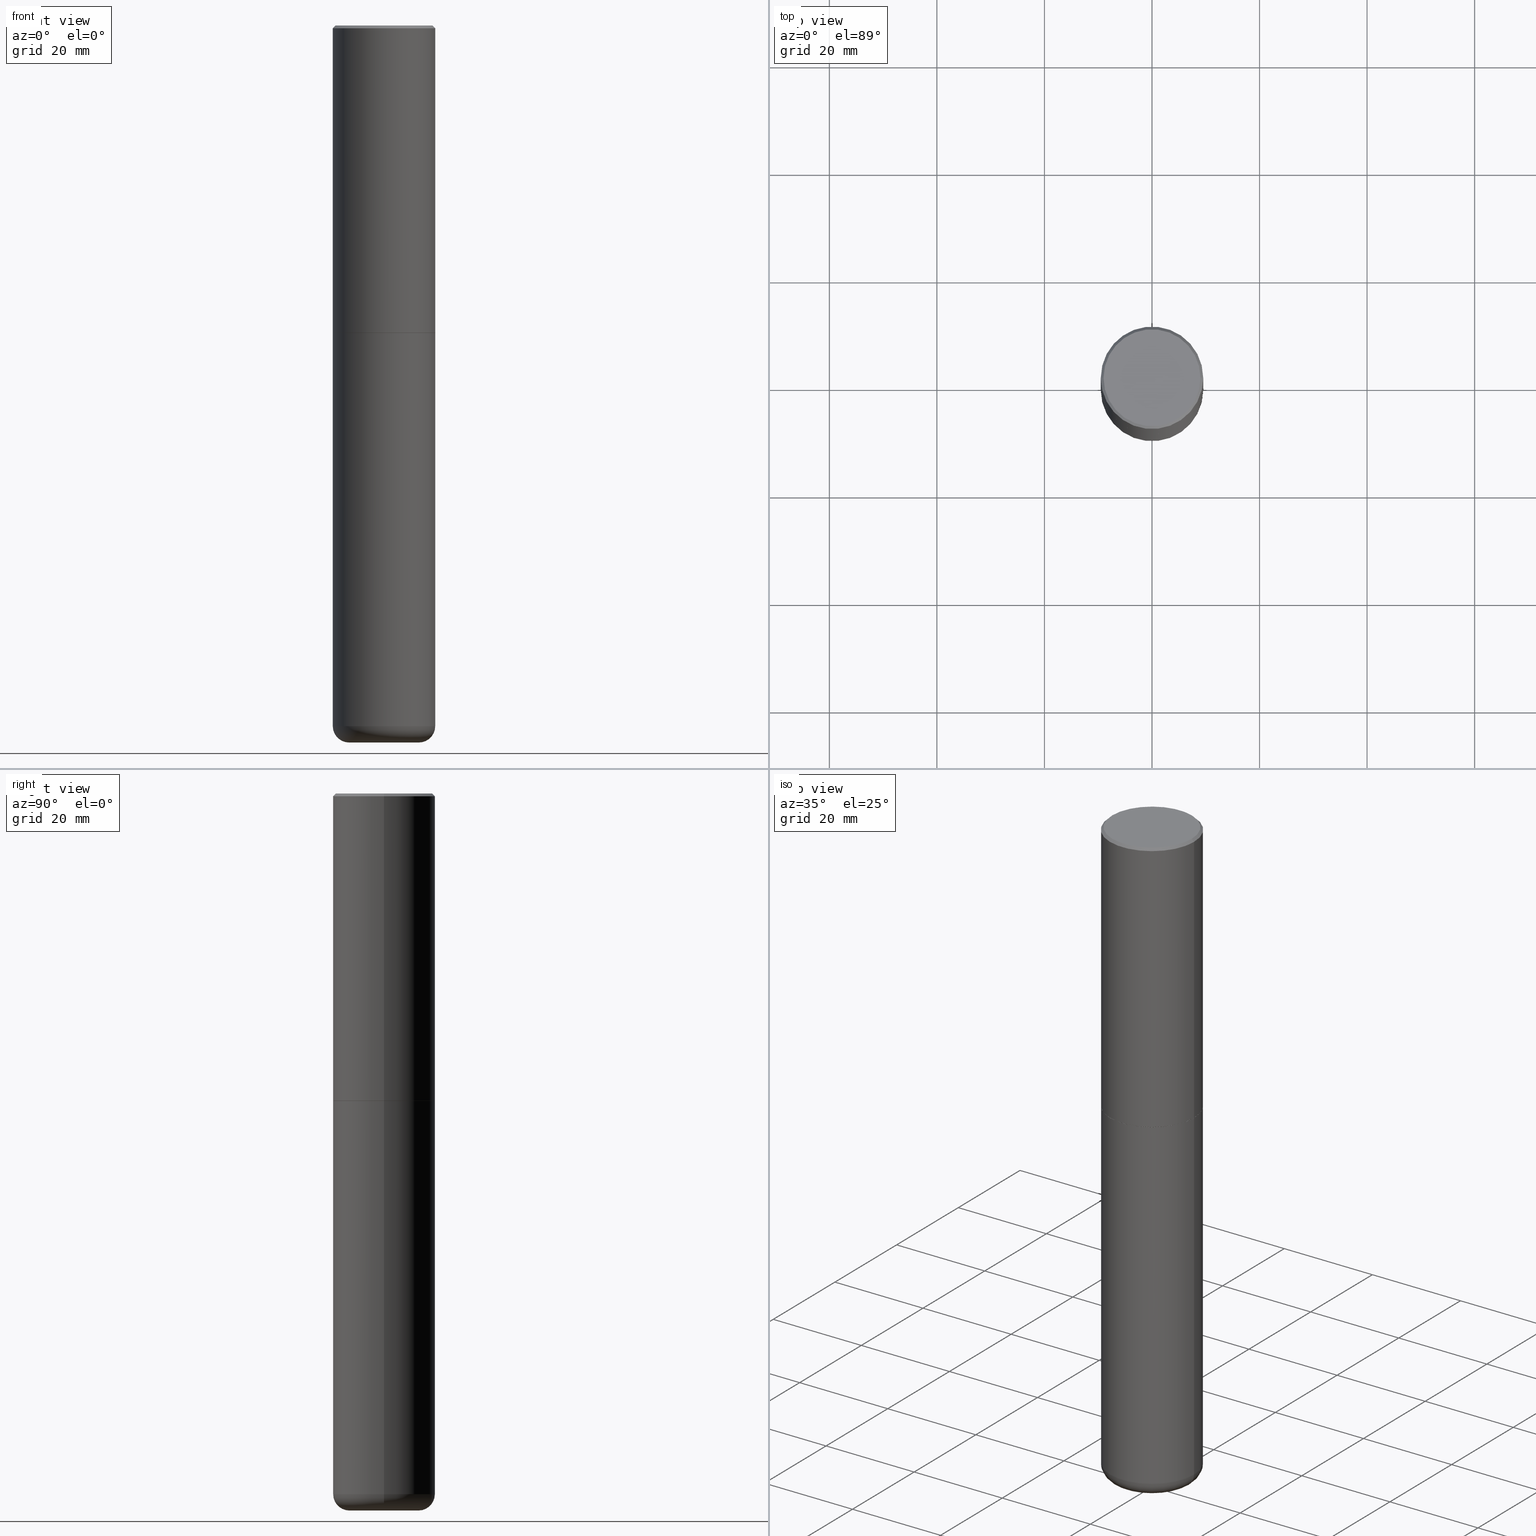
[diagram: canonical four-view strip — front | top / right | iso, engineering-drawing reading convention]
A machine part, canonical four-view strip (front | top / right | iso — engineering-drawing reading convention). The complete STEP part file that produces these views, byte-faithful:
ISO-10303-21;
HEADER;
FILE_DESCRIPTION (( 'STEP AP203' ),
    '1' );
FILE_NAME ('77288.STEP',
    '2024-03-06T16:52:44',
    ( '' ),
    ( '' ),
    'SwSTEP 2.0',
    'SolidWorks 2023',
    '' );
FILE_SCHEMA (( 'CONFIG_CONTROL_DESIGN' ));
ENDSEC;

DATA;
#1 = CARTESIAN_POINT ( 'NONE',  ( -0.3750000000000001110, 2.548781377355487113E-15, -0.02000000000000008715 ) ) ;
#2 = CARTESIAN_POINT ( 'NONE',  ( 5.499859345110371740E-29, -7.852341531058233864E-15, -2.249000000000000110 ) ) ;
#3 = CARTESIAN_POINT ( 'NONE',  ( 0.3739999999999999991, -1.046746105385174245E-14, -2.250000000000000444 ) ) ;
#4 = VECTOR ( 'NONE', #261, 39.37007874015748143 ) ;
#5 = ORGANIZATION ( 'UNSPECIFIED', 'UNSPECIFIED', '' ) ;
#6 = LINE ( 'NONE', #129, #4 ) ;
#7 = VERTEX_POINT ( 'NONE', #110 ) ;
#8 = CARTESIAN_POINT ( 'NONE',  ( 0.000000000000000000, 0.000000000000000000, 0.000000000000000000 ) ) ;
#9 = DIRECTION ( 'NONE',  ( 1.000000000000000000, -6.982962677686264344E-15, 0.000000000000000000 ) ) ;
#10 = PRODUCT_DEFINITION ( 'UNKNOWN', '', #29, #371 ) ;
#11 = PLANE ( 'NONE',  #107 ) ;
#12 = FACE_OUTER_BOUND ( 'NONE', #344, .T. ) ;
#13 = DIRECTION ( 'NONE',  ( 1.000000000000000000, -6.982962677686266711E-15, 4.876176775795935793E-29 ) ) ;
#14 = ORIENTED_EDGE ( 'NONE', *, *, #51, .F. ) ;
#15 = CONICAL_SURFACE ( 'NONE', #62, 0.3750000000000001110, 0.7853981633974477239 ) ;
#16 = DIRECTION ( 'NONE',  ( 1.000000000000000000, -6.982962677686267499E-15, 0.000000000000000000 ) ) ;
#17 = ORIENTED_EDGE ( 'NONE', *, *, #117, .T. ) ;
#18 = PERSON_AND_ORGANIZATION_ROLE ( 'creator' ) ;
#19 = COORDINATED_UNIVERSAL_TIME_OFFSET ( 5, 0, .BEHIND. ) ;
#20 = AXIS2_PLACEMENT_3D ( 'NONE', #104, #359, #30 ) ;
#21 = APPROVAL_DATE_TIME ( #341, #275 ) ;
#22 = EDGE_CURVE ( 'NONE', #188, #69, #112, .T. ) ;
#23 = CIRCLE ( 'NONE', #91, 0.3549999999999999822 ) ;
#24 = ORIENTED_EDGE ( 'NONE', *, *, #342, .T. ) ;
#25 = DATE_TIME_ROLE ( 'classification_date' ) ;
#26 = ORIENTED_EDGE ( 'NONE', *, *, #273, .T. ) ;
#27 = ORIENTED_EDGE ( 'NONE', *, *, #136, .F. ) ;
#28 = AXIS2_PLACEMENT_3D ( 'NONE', #398, #324, #184 ) ;
#29 = PRODUCT_DEFINITION_FORMATION_WITH_SPECIFIED_SOURCE ( 'ANY', '', #120, .NOT_KNOWN. ) ;
#30 = DIRECTION ( 'NONE',  ( 1.000000000000000000, -6.982962677686265922E-15, 4.876176775795935793E-29 ) ) ;
#31 = DATE_AND_TIME ( #285, #170 ) ;
#32 = DIRECTION ( 'NONE',  ( -2.445468806185136597E-29, 3.491481338843145583E-15, 1.000000000000000000 ) ) ;
#33 = VERTEX_POINT ( 'NONE', #72 ) ;
#34 = DIRECTION ( 'NONE',  ( 1.000000000000000000, -6.982962677686265922E-15, 4.876176775795935793E-29 ) ) ;
#35 = DIRECTION ( 'NONE',  ( -2.445468806185136597E-29, 3.491481338843145583E-15, 1.000000000000000000 ) ) ;
#36 = ORIENTED_EDGE ( 'NONE', *, *, #83, .F. ) ;
#37 = VECTOR ( 'NONE', #257, 39.37007874015748143 ) ;
#38 = LOCAL_TIME ( 11, 52, 44.00000000000000000, #289 ) ;
#39 = CC_DESIGN_PERSON_AND_ORGANIZATION_ASSIGNMENT ( #148, #345, ( #29 ) ) ;
#40 = FACE_OUTER_BOUND ( 'NONE', #221, .T. ) ;
#41 = DIRECTION ( 'NONE',  ( -2.445468806185136597E-29, 3.491481338843145583E-15, 1.000000000000000000 ) ) ;
#42 = CARTESIAN_POINT ( 'NONE',  ( 0.2550000000000000044, -1.969195475107533334E-14, -5.129999999999999893 ) ) ;
#43 = DIRECTION ( 'NONE',  ( 2.445468806185136597E-29, -3.491481338843145583E-15, -1.000000000000000000 ) ) ;
#44 = DIRECTION ( 'NONE',  ( -2.445468806185136597E-29, 3.491481338843145583E-15, 1.000000000000000000 ) ) ;
#45 = DIRECTION ( 'NONE',  ( 1.000000000000000000, -6.982962677686264344E-15, 0.000000000000000000 ) ) ;
#46 = FACE_OUTER_BOUND ( 'NONE', #214, .T. ) ;
#47 = AXIS2_PLACEMENT_3D ( 'NONE', #370, #259, #45 ) ;
#48 = CIRCLE ( 'NONE', #374, 0.2550000000000000044 ) ;
#49 = DIRECTION ( 'NONE',  ( 1.000000000000000000, -6.982962677686266711E-15, 4.876176775795935793E-29 ) ) ;
#50 = EDGE_CURVE ( 'NONE', #351, #369, #365, .T. ) ;
#51 = EDGE_CURVE ( 'NONE', #251, #180, #346, .T. ) ;
#52 = EDGE_LOOP ( 'NONE', ( #186, #196, #316, #382 ) ) ;
#53 = AXIS2_PLACEMENT_3D ( 'NONE', #327, #105, #68 ) ;
#54 = TOROIDAL_SURFACE ( 'NONE', #74, 0.2550000000000000044, 0.1199999999999993711 ) ;
#55 = PERSON_AND_ORGANIZATION_ROLE ( 'classification_officer' ) ;
#56 = ORIENTED_EDGE ( 'NONE', *, *, #317, .T. ) ;
#57 = APPLICATION_CONTEXT ( 'configuration controlled 3d designs of mechanical parts and assemblies' ) ;
#58 = COORDINATED_UNIVERSAL_TIME_OFFSET ( 5, 0, .BEHIND. ) ;
#59 = EDGE_CURVE ( 'NONE', #313, #69, #160, .T. ) ;
#60 = ORIENTED_EDGE ( 'NONE', *, *, #243, .T. ) ;
#61 = DIRECTION ( 'NONE',  ( 1.000000000000000000, -6.982962677686263555E-15, 4.883557194083111219E-29 ) ) ;
#62 = AXIS2_PLACEMENT_3D ( 'NONE', #197, #43, #165 ) ;
#63 = EDGE_LOOP ( 'NONE', ( #124, #286, #325, #106 ) ) ;
#64 = APPLICATION_PROTOCOL_DEFINITION ( 'international standard', 'config_control_design', 1994, #57 ) ;
#65 = PLANE ( 'NONE',  #256 ) ;
#66 = ADVANCED_FACE ( 'NONE', ( #296 ), #11, .F. ) ;
#67 = DIRECTION ( 'NONE',  ( -0.7071067811865471286, 2.468850131082252722E-15, -0.7071067811865479058 ) ) ;
#68 = DIRECTION ( 'NONE',  ( 1.000000000000000000, -6.982962677686265922E-15, 4.876231632511988183E-29 ) ) ;
#69 = VERTEX_POINT ( 'NONE', #201 ) ;
#70 = DIRECTION ( 'NONE',  ( 2.445468806185136597E-29, -3.491481338843145583E-15, -1.000000000000000000 ) ) ;
#71 = DIRECTION ( 'NONE',  ( 1.000000000000000000, -6.982962677686265922E-15, 0.000000000000000000 ) ) ;
#72 = CARTESIAN_POINT ( 'NONE',  ( -0.3750000000000002776, -1.296550319817170517E-15, -2.249000000000000110 ) ) ;
#73 = AXIS2_PLACEMENT_3D ( 'NONE', #2, #41, #16 ) ;
#74 = AXIS2_PLACEMENT_3D ( 'NONE', #329, #171, #113 ) ;
#75 = DIRECTION ( 'NONE',  ( 1.000000000000000000, -6.982962677686265922E-15, 4.876231632511988183E-29 ) ) ;
#76 = CARTESIAN_POINT ( 'NONE',  ( 0.3750000000000000555, -1.047444401652942689E-14, -2.250000000000000000 ) ) ;
#77 = EDGE_LOOP ( 'NONE', ( #147, #56, #103, #400 ) ) ;
#78 = CARTESIAN_POINT ( 'NONE',  ( -0.2550000000000000044, -1.609941529207708187E-14, -5.129999999999999893 ) ) ;
#79 = DIRECTION ( 'NONE',  ( 1.000000000000000000, -6.982962677686271444E-15, 0.000000000000000000 ) ) ;
#80 = CARTESIAN_POINT ( 'NONE',  ( 5.502304813916557343E-29, -7.855833012397078448E-15, -2.250000000000000000 ) ) ;
#81 = FACE_OUTER_BOUND ( 'NONE', #361, .T. ) ;
#82 = APPROVAL_PERSON_ORGANIZATION ( #250, #174, #123 ) ;
#83 = EDGE_CURVE ( 'NONE', #89, #7, #290, .T. ) ;
#84 = DIRECTION ( 'NONE',  ( -2.445468806185136877E-29, 3.491481338843145188E-15, 1.000000000000000000 ) ) ;
#85 = AXIS2_PLACEMENT_3D ( 'NONE', #187, #320, #287 ) ;
#86 = DIRECTION ( 'NONE',  ( -2.445468806185136597E-29, 3.491481338843145583E-15, 1.000000000000000000 ) ) ;
#87 = LENGTH_MEASURE_WITH_UNIT ( LENGTH_MEASURE( 0.02539999999999999897 ), #140 );
#88 = SHAPE_DEFINITION_REPRESENTATION ( #144, #378 ) ;
#89 = VERTEX_POINT ( 'NONE', #3 ) ;
#90 = DIRECTION ( 'NONE',  ( 1.000000000000000000, 0.000000000000000000, 0.000000000000000000 ) ) ;
#91 = AXIS2_PLACEMENT_3D ( 'NONE', #233, #367, #75 ) ;
#92 = CC_DESIGN_APPROVAL ( #275, ( #29 ) ) ;
#93 = ADVANCED_FACE ( 'NONE', ( #100 ), #335, .T. ) ;
#94 = ORIENTED_EDGE ( 'NONE', *, *, #22, .T. ) ;
#95 = DIRECTION ( 'NONE',  ( 2.438088387897960049E-29, -3.491481338843145188E-15, -1.000000000000000000 ) ) ;
#96 = ADVANCED_FACE ( 'NONE', ( #81 ), #239, .T. ) ;
#97 = APPROVAL_PERSON_ORGANIZATION ( #172, #275, #211 ) ;
#98 = PLANE ( 'NONE',  #310 ) ;
#99 = DIRECTION ( 'NONE',  ( -1.000000000000000000, 7.105427357600993970E-15, 0.000000000000000000 ) ) ;
#100 = FACE_OUTER_BOUND ( 'NONE', #77, .T. ) ;
#101 = LINE ( 'NONE', #362, #195 ) ;
#102 = PLANE ( 'NONE',  #223 ) ;
#103 = ORIENTED_EDGE ( 'NONE', *, *, #408, .T. ) ;
#104 = CARTESIAN_POINT ( 'NONE',  ( 0.000000000000000000, 0.000000000000000000, 0.000000000000000000 ) ) ;
#105 = DIRECTION ( 'NONE',  ( -2.445468806185136597E-29, 3.491481338843145583E-15, 1.000000000000000000 ) ) ;
#106 = ORIENTED_EDGE ( 'NONE', *, *, #330, .F. ) ;
#107 = AXIS2_PLACEMENT_3D ( 'NONE', #298, #132, #394 ) ;
#108 = CYLINDRICAL_SURFACE ( 'NONE', #116, 0.3750000000000002220 ) ;
#109 = ADVANCED_FACE ( 'NONE', ( #318 ), #235, .T. ) ;
#110 = CARTESIAN_POINT ( 'NONE',  ( -0.3739999999999999991, -5.193104726306080569E-15, -2.250000000000000444 ) ) ;
#111 = CARTESIAN_POINT ( 'NONE',  ( -0.2550000000000000044, -1.588257853095161128E-14, -5.249999999999999112 ) ) ;
#112 = LINE ( 'NONE', #232, #150 ) ;
#113 = DIRECTION ( 'NONE',  ( 1.000000000000000000, -6.982962677686263555E-15, 4.883557194083111219E-29 ) ) ;
#114 = CC_DESIGN_APPROVAL ( #174, ( #387 ) ) ;
#115 = CC_DESIGN_DATE_AND_TIME_ASSIGNMENT ( #31, #25, ( #387 ) ) ;
#116 = AXIS2_PLACEMENT_3D ( 'NONE', #393, #131, #13 ) ;
#117 = EDGE_CURVE ( 'NONE', #180, #293, #413, .T. ) ;
#118 = APPLICATION_PROTOCOL_DEFINITION ( 'international standard', 'config_control_design', 1994, #390 ) ;
#119 = ORIENTED_EDGE ( 'NONE', *, *, #22, .F. ) ;
#120 = PRODUCT ( '77288', '77288', '', ( #348 ) ) ;
#121 = ORIENTED_EDGE ( 'NONE', *, *, #303, .T. ) ;
#122 = LINE ( 'NONE', #1, #409 ) ;
#123 = APPROVAL_ROLE ( '' ) ;
#124 = ORIENTED_EDGE ( 'NONE', *, *, #83, .T. ) ;
#125 = LINE ( 'NONE', #352, #37 ) ;
#126 = CARTESIAN_POINT ( 'NONE',  ( -0.3750000000000001110, 2.548781377355487113E-15, -0.02000000000000008715 ) ) ;
#127 = CIRCLE ( 'NONE', #373, 0.3750000000000002776 ) ;
#128 = EDGE_LOOP ( 'NONE', ( #414, #24, #247, #14 ) ) ;
#129 = CARTESIAN_POINT ( 'NONE',  ( -0.3750000000000000555, 2.664535259100376091E-15, -1.844600658845589598E-29 ) ) ;
#130 = ORIENTED_EDGE ( 'NONE', *, *, #408, .F. ) ;
#131 = DIRECTION ( 'NONE',  ( -2.445468806185136597E-29, 3.491481338843145583E-15, 1.000000000000000000 ) ) ;
#132 = DIRECTION ( 'NONE',  ( -2.438088387897960049E-29, 3.491481338843145188E-15, 1.000000000000000000 ) ) ;
#133 = DIRECTION ( 'NONE',  ( -1.000000000000000000, 6.982962677686265922E-15, -4.876176775795935793E-29 ) ) ;
#134 = CARTESIAN_POINT ( 'NONE',  ( 4.890937612370294178E-31, -6.982962677686321191E-17, -0.02000000000000008715 ) ) ;
#135 = ORIENTED_EDGE ( 'NONE', *, *, #342, .F. ) ;
#136 = EDGE_CURVE ( 'NONE', #7, #89, #379, .T. ) ;
#137 = DIRECTION ( 'NONE',  ( 1.000000000000000000, -6.982962677686260400E-15, 0.000000000000000000 ) ) ;
#138 = ORIENTED_EDGE ( 'NONE', *, *, #412, .F. ) ;
#139 = EDGE_CURVE ( 'NONE', #151, #313, #122, .T. ) ;
#140 =( LENGTH_UNIT ( ) NAMED_UNIT ( * ) SI_UNIT ( $, .METRE. ) );
#141 = AXIS2_PLACEMENT_3D ( 'NONE', #164, #288, #405 ) ;
#142 = AXIS2_PLACEMENT_3D ( 'NONE', #152, #357, #90 ) ;
#143 = EDGE_LOOP ( 'NONE', ( #36, #27 ) ) ;
#144 = PRODUCT_DEFINITION_SHAPE ( 'NONE', 'NONE',  #10 ) ;
#145 = COORDINATED_UNIVERSAL_TIME_OFFSET ( 5, 0, .BEHIND. ) ;
#146 = ADVANCED_FACE ( 'NONE', ( #265 ), #395, .T. ) ;
#147 = ORIENTED_EDGE ( 'NONE', *, *, #383, .F. ) ;
#148 = PERSON_AND_ORGANIZATION ( #192, #5 ) ;
#149 = ORIENTED_EDGE ( 'NONE', *, *, #260, .T. ) ;
#150 = VECTOR ( 'NONE', #364, 39.37007874015748143 ) ;
#151 = VERTEX_POINT ( 'NONE', #255 ) ;
#152 = CARTESIAN_POINT ( 'NONE',  ( 0.000000000000000000, 0.000000000000000000, 0.000000000000000000 ) ) ;
#153 = CARTESIAN_POINT ( 'NONE',  ( 5.502304813916558464E-29, -7.855833012397078448E-15, -2.250000000000000444 ) ) ;
#154 = SECURITY_CLASSIFICATION_LEVEL ( 'unclassified' ) ;
#155 = DIRECTION ( 'NONE',  ( 1.000000000000000000, -6.982962677686261189E-15, 0.000000000000000000 ) ) ;
#156 = DIRECTION ( 'NONE',  ( 2.438088387897960049E-29, -3.491481338843145188E-15, -1.000000000000000000 ) ) ;
#157 = ORIENTED_EDGE ( 'NONE', *, *, #336, .F. ) ;
#158 = CARTESIAN_POINT ( 'NONE',  ( 0.3749999999999996669, -2.052991027239768345E-14, -5.129999999999999893 ) ) ;
#159 = CARTESIAN_POINT ( 'NONE',  ( 5.502304813916557343E-29, -7.855833012397078448E-15, -2.250000000000000000 ) ) ;
#160 = CIRCLE ( 'NONE', #141, 0.3750000000000001110 ) ;
#161 = ORIENTED_EDGE ( 'NONE', *, *, #243, .F. ) ;
#162 = CONICAL_SURFACE ( 'NONE', #210, 0.3739999999999999991, 0.7853981633974141952 ) ;
#163 = CARTESIAN_POINT ( 'NONE',  ( 0.2550000000000000044, -2.011093251173650682E-14, -5.249999999999999112 ) ) ;
#164 = CARTESIAN_POINT ( 'NONE',  ( 4.890937612370294178E-31, -6.982962677686321191E-17, -0.02000000000000008715 ) ) ;
#165 = DIRECTION ( 'NONE',  ( -1.000000000000000000, 6.982962677686265922E-15, 0.000000000000000000 ) ) ;
#166 = DIRECTION ( 'NONE',  ( -6.982962677686266711E-15, -1.000000000000000000, 3.491481338843145583E-15 ) ) ;
#167 = DIRECTION ( 'NONE',  ( -1.000000000000000000, 6.982962677686265922E-15, -4.876176775795935793E-29 ) ) ;
#168 = DIRECTION ( 'NONE',  ( -2.445468806185136597E-29, 3.491481338843145583E-15, 1.000000000000000000 ) ) ;
#169 = CIRCLE ( 'NONE', #411, 0.3750000000000000555 ) ;
#170 = LOCAL_TIME ( 11, 52, 44.00000000000000000, #179 ) ;
#171 = DIRECTION ( 'NONE',  ( -2.445468806185136597E-29, 3.491481338843145583E-15, 1.000000000000000000 ) ) ;
#172 = PERSON_AND_ORGANIZATION ( #192, #5 ) ;
#173 = AXIS2_PLACEMENT_3D ( 'NONE', #153, #294, #224 ) ;
#174 = APPROVAL ( #417, 'UNSPECIFIED' ) ;
#175 = PERSON_AND_ORGANIZATION ( #192, #5 ) ;
#176 = AXIS2_PLACEMENT_3D ( 'NONE', #8, #284, #34 ) ;
#177 = AXIS2_PLACEMENT_3D ( 'NONE', #78, #234, #99 ) ;
#178 = APPROVAL_PERSON_ORGANIZATION ( #249, #302, #350 ) ;
#179 = COORDINATED_UNIVERSAL_TIME_OFFSET ( 5, 0, .BEHIND. ) ;
#180 = VERTEX_POINT ( 'NONE', #158 ) ;
#181 = CALENDAR_DATE ( 2024, 6, 3 ) ;
#182 = ORIENTED_EDGE ( 'NONE', *, *, #59, .T. ) ;
#183 = TOROIDAL_SURFACE ( 'NONE', #204, 0.2550000000000000044, 0.1199999999999993711 ) ;
#184 = DIRECTION ( 'NONE',  ( 1.000000000000000000, -6.982962677686261189E-15, 0.000000000000000000 ) ) ;
#185 = CIRCLE ( 'NONE', #225, 0.3750000000000001110 ) ;
#186 = ORIENTED_EDGE ( 'NONE', *, *, #237, .F. ) ;
#187 = CARTESIAN_POINT ( 'NONE',  ( 5.502304813916558464E-29, -7.855833012397078448E-15, -2.250000000000000444 ) ) ;
#188 = VERTEX_POINT ( 'NONE', #416 ) ;
#189 = DIRECTION ( 'NONE',  ( 2.438088387897960049E-29, -3.491481338843145188E-15, -1.000000000000000000 ) ) ;
#190 = DIRECTION ( 'NONE',  ( -2.445468806185136597E-29, 3.491481338843145583E-15, 1.000000000000000000 ) ) ;
#191 = DIRECTION ( 'NONE',  ( -0.7071067811865232589, 7.493145998870265808E-15, 0.7071067811865715536 ) ) ;
#192 = PERSON ( 'UNSPECIFIED', 'UNSPECIFIED', 'UNSPECIFIED', ('UNSPECIFIED'), ('UNSPECIFIED'), ('UNSPECIFIED') ) ;
#193 = FACE_OUTER_BOUND ( 'NONE', #128, .T. ) ;
#194 = ADVANCED_FACE ( 'NONE', ( #356 ), #65, .F. ) ;
#195 = VECTOR ( 'NONE', #191, 39.37007874015748854 ) ;
#196 = ORIENTED_EDGE ( 'NONE', *, *, #136, .T. ) ;
#197 = CARTESIAN_POINT ( 'NONE',  ( 4.890937612370294178E-31, -6.982962677686321191E-17, -0.02000000000000008715 ) ) ;
#198 = FACE_OUTER_BOUND ( 'NONE', #63, .T. ) ;
#199 = ORIENTED_EDGE ( 'NONE', *, *, #139, .T. ) ;
#200 = LINE ( 'NONE', #208, #217 ) ;
#201 = CARTESIAN_POINT ( 'NONE',  ( 0.3750000000000001110, -2.642516375941188423E-15, -0.02000000000000008715 ) ) ;
#202 = CARTESIAN_POINT ( 'NONE',  ( 0.3750000000000002776, -1.047095253519058704E-14, -2.249000000000000110 ) ) ;
#203 = DIRECTION ( 'NONE',  ( -2.445468806185136597E-29, 3.491481338843145583E-15, 1.000000000000000000 ) ) ;
#204 = AXIS2_PLACEMENT_3D ( 'NONE', #326, #297, #61 ) ;
#205 = ADVANCED_FACE ( 'NONE', ( #403 ), #215, .T. ) ;
#206 = MANIFOLD_SOLID_BREP ( 'Body-Move/Copy2[1]', #309 ) ;
#207 = CALENDAR_DATE ( 2024, 6, 3 ) ;
#208 = CARTESIAN_POINT ( 'NONE',  ( 0.3750000000000002220, -2.618611004132351594E-15, 1.828566290923477043E-29 ) ) ;
#209 = EDGE_CURVE ( 'NONE', #180, #351, #125, .T. ) ;
#210 = AXIS2_PLACEMENT_3D ( 'NONE', #363, #44, #258 ) ;
#211 = APPROVAL_ROLE ( '' ) ;
#212 = EDGE_LOOP ( 'NONE', ( #228, #149 ) ) ;
#213 = ADVANCED_FACE ( 'NONE', ( #392 ), #98, .T. ) ;
#214 = EDGE_LOOP ( 'NONE', ( #26, #381, #281, #130 ) ) ;
#215 = CONICAL_SURFACE ( 'NONE', #305, 0.3750000000000001110, 0.7853981633974477239 ) ;
#216 = DIMENSIONAL_EXPONENTS ( 1.000000000000000000, 0.000000000000000000, 0.000000000000000000, 0.000000000000000000, 0.000000000000000000, 0.000000000000000000, 0.000000000000000000 ) ;
#217 = VECTOR ( 'NONE', #84, 39.37007874015748143 ) ;
#218 = PERSON_AND_ORGANIZATION ( #192, #5 ) ;
#219 = ORIENTED_EDGE ( 'NONE', *, *, #139, .F. ) ;
#220 = APPROVAL_STATUS ( 'not_yet_approved' ) ;
#221 = EDGE_LOOP ( 'NONE', ( #135, #121, #246, #161 ) ) ;
#222 = CARTESIAN_POINT ( 'NONE',  ( 4.890937612370294178E-31, -6.982962677686321191E-17, -0.02000000000000008715 ) ) ;
#223 = AXIS2_PLACEMENT_3D ( 'NONE', #80, #156, #167 ) ;
#224 = DIRECTION ( 'NONE',  ( 1.000000000000000000, -6.982962677686265133E-15, 0.000000000000000000 ) ) ;
#225 = AXIS2_PLACEMENT_3D ( 'NONE', #134, #262, #71 ) ;
#226 = CARTESIAN_POINT ( 'NONE',  ( 2.854868159318815822E-28, 4.167294683602726042E-15, -5.249999999999999112 ) ) ;
#227 = CARTESIAN_POINT ( 'NONE',  ( 1.283871123247196489E-28, -1.833027702892651007E-14, -5.249999999999999112 ) ) ;
#228 = ORIENTED_EDGE ( 'NONE', *, *, #336, .T. ) ;
#229 = EDGE_CURVE ( 'NONE', #293, #369, #6, .T. ) ;
#230 = DIRECTION ( 'NONE',  ( -1.000000000000000000, 6.982962677686265922E-15, 0.000000000000000000 ) ) ;
#231 = DIRECTION ( 'NONE',  ( 0.7071067811865232589, -2.468850131082003836E-15, 0.7071067811865715536 ) ) ;
#232 = CARTESIAN_POINT ( 'NONE',  ( 0.3750000000000001110, -2.642516375941188423E-15, -0.02000000000000008715 ) ) ;
#233 = CARTESIAN_POINT ( 'NONE',  ( -1.565777121502829671E-45, 2.235514755570671047E-31, 6.402768735150616610E-17 ) ) ;
#234 = DIRECTION ( 'NONE',  ( 7.105427357601001859E-15, 1.000000000000000000, -3.491481338843145583E-15 ) ) ;
#235 = CONICAL_SURFACE ( 'NONE', #85, 0.3739999999999999991, 0.7853981633974141952 ) ;
#236 = ORIENTED_EDGE ( 'NONE', *, *, #209, .F. ) ;
#237 = EDGE_CURVE ( 'NONE', #7, #33, #101, .T. ) ;
#238 = ORIENTED_EDGE ( 'NONE', *, *, #229, .F. ) ;
#239 = CYLINDRICAL_SURFACE ( 'NONE', #20, 0.3750000000000000555 ) ;
#240 = DIRECTION ( 'NONE',  ( 1.000000000000000000, -6.982962677686260400E-15, 0.000000000000000000 ) ) ;
#241 = VECTOR ( 'NONE', #231, 39.37007874015748854 ) ;
#242 = LOCAL_TIME ( 11, 52, 44.00000000000000000, #145 ) ;
#243 = EDGE_CURVE ( 'NONE', #293, #180, #271, .T. ) ;
#244 = CC_DESIGN_PERSON_AND_ORGANIZATION_ASSIGNMENT ( #353, #55, ( #387 ) ) ;
#245 = ADVANCED_FACE ( 'NONE', ( #40 ), #183, .T. ) ;
#246 = ORIENTED_EDGE ( 'NONE', *, *, #51, .T. ) ;
#247 = ORIENTED_EDGE ( 'NONE', *, *, #117, .F. ) ;
#248 = CIRCLE ( 'NONE', #53, 0.3549999999999999822 ) ;
#249 = PERSON_AND_ORGANIZATION ( #192, #5 ) ;
#250 = PERSON_AND_ORGANIZATION ( #192, #5 ) ;
#251 = VERTEX_POINT ( 'NONE', #163 ) ;
#252 = PERSON_AND_ORGANIZATION ( #192, #5 ) ;
#253 = ORIENTED_EDGE ( 'NONE', *, *, #307, .T. ) ;
#254 = PRODUCT_RELATED_PRODUCT_CATEGORY ( 'detail', '', ( #120 ) ) ;
#255 = CARTESIAN_POINT ( 'NONE',  ( -0.3549999999999999822, 2.513866563967055464E-15, 6.402768735148871255E-17 ) ) ;
#256 = AXIS2_PLACEMENT_3D ( 'NONE', #391, #95, #133 ) ;
#257 = DIRECTION ( 'NONE',  ( -2.445468806185136877E-29, 3.491481338843145188E-15, 1.000000000000000000 ) ) ;
#258 = DIRECTION ( 'NONE',  ( 1.000000000000000000, -6.982962677686265133E-15, 0.000000000000000000 ) ) ;
#259 = DIRECTION ( 'NONE',  ( -2.445468806185136597E-29, 3.491481338843145583E-15, 1.000000000000000000 ) ) ;
#260 = EDGE_CURVE ( 'NONE', #188, #151, #23, .T. ) ;
#261 = DIRECTION ( 'NONE',  ( -2.445468806185136877E-29, 3.491481338843145188E-15, 1.000000000000000000 ) ) ;
#262 = DIRECTION ( 'NONE',  ( -2.445468806185136597E-29, 3.491481338843145583E-15, 1.000000000000000000 ) ) ;
#263 = ADVANCED_FACE ( 'NONE', ( #315 ), #15, .T. ) ;
#264 = ORIENTED_EDGE ( 'NONE', *, *, #307, .F. ) ;
#265 = FACE_OUTER_BOUND ( 'NONE', #343, .T. ) ;
#266 = CARTESIAN_POINT ( 'NONE',  ( 1.254525497572975083E-28, -1.791129926826533659E-14, -5.129999999999999893 ) ) ;
#267 = ORIENTED_EDGE ( 'NONE', *, *, #389, .T. ) ;
#268 = CARTESIAN_POINT ( 'NONE',  ( 5.499859345110371740E-29, -7.852341531058233864E-15, -2.249000000000000110 ) ) ;
#269 = ADVANCED_FACE ( 'NONE', ( #12 ), #102, .F. ) ;
#270 = ORIENTED_EDGE ( 'NONE', *, *, #50, .F. ) ;
#271 = CIRCLE ( 'NONE', #28, 0.3750000000000000555 ) ;
#272 = LOCAL_TIME ( 11, 52, 44.00000000000000000, #19 ) ;
#273 = EDGE_CURVE ( 'NONE', #328, #33, #301, .T. ) ;
#274 = ADVANCED_FACE ( 'NONE', ( #46 ), #108, .T. ) ;
#275 = APPROVAL ( #277, 'UNSPECIFIED' ) ;
#276 =( CONVERSION_BASED_UNIT ( 'INCH', #87 ) LENGTH_UNIT ( ) NAMED_UNIT ( #216 ) );
#277 = APPROVAL_STATUS ( 'not_yet_approved' ) ;
#278 = AXIS2_PLACEMENT_3D ( 'NONE', #372, #203, #49 ) ;
#279 = DATE_AND_TIME ( #380, #242 ) ;
#280 = APPROVAL_DATE_TIME ( #279, #174 ) ;
#281 = ORIENTED_EDGE ( 'NONE', *, *, #389, .F. ) ;
#282 = CC_DESIGN_APPROVAL ( #302, ( #10 ) ) ;
#283 = DATE_AND_TIME ( #181, #410 ) ;
#284 = DIRECTION ( 'NONE',  ( -2.445468806185136597E-29, 3.491481338843145583E-15, 1.000000000000000000 ) ) ;
#285 = CALENDAR_DATE ( 2024, 6, 3 ) ;
#286 = ORIENTED_EDGE ( 'NONE', *, *, #237, .T. ) ;
#287 = DIRECTION ( 'NONE',  ( 1.000000000000000000, -6.982962677686265133E-15, 0.000000000000000000 ) ) ;
#288 = DIRECTION ( 'NONE',  ( -2.445468806185136597E-29, 3.491481338843145583E-15, 1.000000000000000000 ) ) ;
#289 = COORDINATED_UNIVERSAL_TIME_OFFSET ( 5, 0, .BEHIND. ) ;
#290 = CIRCLE ( 'NONE', #314, 0.3739999999999999991 ) ;
#291 = DIRECTION ( 'NONE',  ( -1.000000000000000000, 6.982962677686265922E-15, -4.876176775795935793E-29 ) ) ;
#292 = CARTESIAN_POINT ( 'NONE',  ( -0.3750000000000000555, -1.021903088123083182E-14, -2.250000000000000000 ) ) ;
#293 = VERTEX_POINT ( 'NONE', #300 ) ;
#294 = DIRECTION ( 'NONE',  ( -2.445468806185136597E-29, 3.491481338843145583E-15, 1.000000000000000000 ) ) ;
#295 = DIRECTION ( 'NONE',  ( 1.000000000000000000, -6.982962677686267499E-15, 0.000000000000000000 ) ) ;
#296 = FACE_OUTER_BOUND ( 'NONE', #143, .T. ) ;
#297 = DIRECTION ( 'NONE',  ( -2.445468806185136597E-29, 3.491481338843145583E-15, 1.000000000000000000 ) ) ;
#298 = CARTESIAN_POINT ( 'NONE',  ( 5.502304813916558464E-29, -7.855833012397078448E-15, -2.250000000000000444 ) ) ;
#299 = CLOSED_SHELL ( 'NONE', ( #368, #274, #263, #205, #93, #109, #66, #194 ) ) ;
#300 = CARTESIAN_POINT ( 'NONE',  ( -0.3749999999999996669, -1.524676400916496405E-14, -5.129999999999999893 ) ) ;
#301 = CIRCLE ( 'NONE', #73, 0.3750000000000002776 ) ;
#302 = APPROVAL ( #220, 'UNSPECIFIED' ) ;
#303 = EDGE_CURVE ( 'NONE', #354, #251, #355, .T. ) ;
#304 = CC_DESIGN_PERSON_AND_ORGANIZATION_ASSIGNMENT ( #175, #308, ( #29 ) ) ;
#305 = AXIS2_PLACEMENT_3D ( 'NONE', #222, #70, #230 ) ;
#306 = CALENDAR_DATE ( 2024, 6, 3 ) ;
#307 = EDGE_CURVE ( 'NONE', #369, #351, #169, .T. ) ;
#308 = PERSON_AND_ORGANIZATION_ROLE ( 'creator' ) ;
#309 = CLOSED_SHELL ( 'NONE', ( #96, #397, #269, #146, #245, #213 ) ) ;
#310 = AXIS2_PLACEMENT_3D ( 'NONE', #226, #189, #291 ) ;
#311 = ORIENTED_EDGE ( 'NONE', *, *, #303, .F. ) ;
#312 = PERSON_AND_ORGANIZATION_ROLE ( 'design_owner' ) ;
#313 = VERTEX_POINT ( 'NONE', #126 ) ;
#314 = AXIS2_PLACEMENT_3D ( 'NONE', #332, #168, #358 ) ;
#315 = FACE_OUTER_BOUND ( 'NONE', #388, .T. ) ;
#316 = ORIENTED_EDGE ( 'NONE', *, *, #330, .T. ) ;
#317 = EDGE_CURVE ( 'NONE', #33, #328, #127, .T. ) ;
#318 = FACE_OUTER_BOUND ( 'NONE', #52, .T. ) ;
#319 = ORIENTED_EDGE ( 'NONE', *, *, #229, .T. ) ;
#320 = DIRECTION ( 'NONE',  ( -2.445468806185136597E-29, 3.491481338843145583E-15, 1.000000000000000000 ) ) ;
#321 = CARTESIAN_POINT ( 'NONE',  ( -0.3750000000000002220, 2.664535259100377275E-15, -1.844600658845590719E-29 ) ) ;
#322 = AXIS2_PLACEMENT_3D ( 'NONE', #227, #35, #137 ) ;
#323 =( GEOMETRIC_REPRESENTATION_CONTEXT ( 3 ) GLOBAL_UNCERTAINTY_ASSIGNED_CONTEXT ( ( #377 ) ) GLOBAL_UNIT_ASSIGNED_CONTEXT ( ( #276, #340, #333 ) ) REPRESENTATION_CONTEXT ( 'NONE', 'WORKASPACE' ) );
#324 = DIRECTION ( 'NONE',  ( -2.445468806185136597E-29, 3.491481338843145583E-15, 1.000000000000000000 ) ) ;
#325 = ORIENTED_EDGE ( 'NONE', *, *, #273, .F. ) ;
#326 = CARTESIAN_POINT ( 'NONE',  ( 1.254525497572975083E-28, -1.791129926826533659E-14, -5.129999999999999893 ) ) ;
#327 = CARTESIAN_POINT ( 'NONE',  ( -1.565777121502829671E-45, 2.235514755570671047E-31, 6.402768735150616610E-17 ) ) ;
#328 = VERTEX_POINT ( 'NONE', #202 ) ;
#329 = CARTESIAN_POINT ( 'NONE',  ( 1.254525497572975083E-28, -1.791129926826533659E-14, -5.129999999999999893 ) ) ;
#330 = EDGE_CURVE ( 'NONE', #89, #328, #399, .T. ) ;
#331 = MANIFOLD_SOLID_BREP ( 'Body-Move/Copy2[2]', #299 ) ;
#332 = CARTESIAN_POINT ( 'NONE',  ( 5.502304813916558464E-29, -7.855833012397078448E-15, -2.250000000000000444 ) ) ;
#333 =( NAMED_UNIT ( * ) SI_UNIT ( $, .STERADIAN. ) SOLID_ANGLE_UNIT ( ) );
#334 = AXIS2_PLACEMENT_3D ( 'NONE', #266, #32, #155 ) ;
#335 = CYLINDRICAL_SURFACE ( 'NONE', #278, 0.3750000000000002220 ) ;
#336 = EDGE_CURVE ( 'NONE', #151, #188, #248, .T. ) ;
#337 = CARTESIAN_POINT ( 'NONE',  ( 1.283871123247196489E-28, -1.833027702892651007E-14, -5.249999999999999112 ) ) ;
#338 = DATE_TIME_ROLE ( 'creation_date' ) ;
#339 = EDGE_LOOP ( 'NONE', ( #119, #157, #199, #182 ) ) ;
#340 =( NAMED_UNIT ( * ) PLANE_ANGLE_UNIT ( ) SI_UNIT ( $, .RADIAN. ) );
#341 = DATE_AND_TIME ( #306, #272 ) ;
#342 = EDGE_CURVE ( 'NONE', #354, #293, #384, .T. ) ;
#343 = EDGE_LOOP ( 'NONE', ( #238, #60, #407, #264 ) ) ;
#344 = EDGE_LOOP ( 'NONE', ( #386, #253 ) ) ;
#345 = PERSON_AND_ORGANIZATION_ROLE ( 'design_supplier' ) ;
#346 = CIRCLE ( 'NONE', #402, 0.1199999999999993988 ) ;
#347 = EDGE_LOOP ( 'NONE', ( #138, #311 ) ) ;
#348 = MECHANICAL_CONTEXT ( 'NONE', #57, 'mechanical' ) ;
#349 = CC_DESIGN_PERSON_AND_ORGANIZATION_ASSIGNMENT ( #252, #18, ( #10 ) ) ;
#350 = APPROVAL_ROLE ( '' ) ;
#351 = VERTEX_POINT ( 'NONE', #76 ) ;
#352 = CARTESIAN_POINT ( 'NONE',  ( 0.3750000000000000555, -2.618611004132350016E-15, 1.828566290923476203E-29 ) ) ;
#353 = PERSON_AND_ORGANIZATION ( #192, #5 ) ;
#354 = VERTEX_POINT ( 'NONE', #111 ) ;
#355 = CIRCLE ( 'NONE', #322, 0.2550000000000000044 ) ;
#356 = FACE_OUTER_BOUND ( 'NONE', #212, .T. ) ;
#357 = DIRECTION ( 'NONE',  ( 0.000000000000000000, 0.000000000000000000, 1.000000000000000000 ) ) ;
#358 = DIRECTION ( 'NONE',  ( 1.000000000000000000, -6.982962677686265133E-15, 0.000000000000000000 ) ) ;
#359 = DIRECTION ( 'NONE',  ( -2.445468806185136597E-29, 3.491481338843145583E-15, 1.000000000000000000 ) ) ;
#360 = LINE ( 'NONE', #321, #375 ) ;
#361 = EDGE_LOOP ( 'NONE', ( #17, #319, #270, #236 ) ) ;
#362 = CARTESIAN_POINT ( 'NONE',  ( -0.3739999999999999991, -5.198403180654303760E-15, -2.250000000000000444 ) ) ;
#363 = CARTESIAN_POINT ( 'NONE',  ( 5.502304813916558464E-29, -7.855833012397078448E-15, -2.250000000000000444 ) ) ;
#364 = DIRECTION ( 'NONE',  ( 0.7071067811865471286, -7.319954787623254468E-15, -0.7071067811865479058 ) ) ;
#365 = CIRCLE ( 'NONE', #47, 0.3750000000000000555 ) ;
#366 = CC_DESIGN_SECURITY_CLASSIFICATION ( #387, ( #29 ) ) ;
#367 = DIRECTION ( 'NONE',  ( -2.445468806185136597E-29, 3.491481338843145583E-15, 1.000000000000000000 ) ) ;
#368 = ADVANCED_FACE ( 'NONE', ( #198 ), #162, .T. ) ;
#369 = VERTEX_POINT ( 'NONE', #292 ) ;
#370 = CARTESIAN_POINT ( 'NONE',  ( 5.502304813916557343E-29, -7.855833012397078448E-15, -2.250000000000000000 ) ) ;
#371 = DESIGN_CONTEXT ( 'detailed design', #390, 'design' ) ;
#372 = CARTESIAN_POINT ( 'NONE',  ( 0.000000000000000000, 0.000000000000000000, 0.000000000000000000 ) ) ;
#373 = AXIS2_PLACEMENT_3D ( 'NONE', #268, #190, #295 ) ;
#374 = AXIS2_PLACEMENT_3D ( 'NONE', #337, #86, #240 ) ;
#375 = VECTOR ( 'NONE', #404, 39.37007874015748143 ) ;
#376 = DATE_AND_TIME ( #207, #38 ) ;
#377 = UNCERTAINTY_MEASURE_WITH_UNIT (LENGTH_MEASURE( 1.000000000000000082E-05 ), #276, 'distance_accuracy_value', 'NONE');
#378 = ADVANCED_BREP_SHAPE_REPRESENTATION ( '77288', ( #206, #331, #142 ), #323 ) ;
#379 = CIRCLE ( 'NONE', #173, 0.3739999999999999991 ) ;
#380 = CALENDAR_DATE ( 2024, 6, 3 ) ;
#381 = ORIENTED_EDGE ( 'NONE', *, *, #383, .T. ) ;
#382 = ORIENTED_EDGE ( 'NONE', *, *, #317, .F. ) ;
#383 = EDGE_CURVE ( 'NONE', #33, #313, #360, .T. ) ;
#384 = CIRCLE ( 'NONE', #177, 0.1199999999999993988 ) ;
#385 = CC_DESIGN_PERSON_AND_ORGANIZATION_ASSIGNMENT ( #218, #312, ( #120 ) ) ;
#386 = ORIENTED_EDGE ( 'NONE', *, *, #50, .T. ) ;
#387 = SECURITY_CLASSIFICATION ( '', '', #154 ) ;
#388 = EDGE_LOOP ( 'NONE', ( #418, #94, #267, #219 ) ) ;
#389 = EDGE_CURVE ( 'NONE', #69, #313, #185, .T. ) ;
#390 = APPLICATION_CONTEXT ( 'configuration controlled 3d designs of mechanical parts and assemblies' ) ;
#391 = CARTESIAN_POINT ( 'NONE',  ( 2.478951750578624209E-15, 0.3549999999999999822, -1.207462031613563440E-15 ) ) ;
#392 = FACE_OUTER_BOUND ( 'NONE', #347, .T. ) ;
#393 = CARTESIAN_POINT ( 'NONE',  ( 0.000000000000000000, 0.000000000000000000, 0.000000000000000000 ) ) ;
#394 = DIRECTION ( 'NONE',  ( 1.000000000000000000, -6.982962677686265922E-15, 4.876176775795935793E-29 ) ) ;
#395 = CYLINDRICAL_SURFACE ( 'NONE', #176, 0.3750000000000000555 ) ;
#396 = DIRECTION ( 'NONE',  ( -2.445468806185136597E-29, 3.491481338843145583E-15, 1.000000000000000000 ) ) ;
#397 = ADVANCED_FACE ( 'NONE', ( #193 ), #54, .T. ) ;
#398 = CARTESIAN_POINT ( 'NONE',  ( 1.254525497572975083E-28, -1.791129926826533659E-14, -5.129999999999999893 ) ) ;
#399 = LINE ( 'NONE', #406, #241 ) ;
#400 = ORIENTED_EDGE ( 'NONE', *, *, #59, .F. ) ;
#401 = CC_DESIGN_DATE_AND_TIME_ASSIGNMENT ( #376, #338, ( #10 ) ) ;
#402 = AXIS2_PLACEMENT_3D ( 'NONE', #42, #166, #79 ) ;
#403 = FACE_OUTER_BOUND ( 'NONE', #339, .T. ) ;
#404 = DIRECTION ( 'NONE',  ( -2.445468806185136877E-29, 3.491481338843145188E-15, 1.000000000000000000 ) ) ;
#405 = DIRECTION ( 'NONE',  ( 1.000000000000000000, -6.982962677686265922E-15, 0.000000000000000000 ) ) ;
#406 = CARTESIAN_POINT ( 'NONE',  ( 0.3739999999999999991, -1.046746105385174245E-14, -2.250000000000000444 ) ) ;
#407 = ORIENTED_EDGE ( 'NONE', *, *, #209, .T. ) ;
#408 = EDGE_CURVE ( 'NONE', #328, #69, #200, .T. ) ;
#409 = VECTOR ( 'NONE', #67, 39.37007874015748143 ) ;
#410 = LOCAL_TIME ( 11, 52, 44.00000000000000000, #58 ) ;
#411 = AXIS2_PLACEMENT_3D ( 'NONE', #159, #396, #9 ) ;
#412 = EDGE_CURVE ( 'NONE', #251, #354, #48, .T. ) ;
#413 = CIRCLE ( 'NONE', #334, 0.3750000000000000555 ) ;
#414 = ORIENTED_EDGE ( 'NONE', *, *, #412, .T. ) ;
#415 = APPROVAL_DATE_TIME ( #283, #302 ) ;
#416 = CARTESIAN_POINT ( 'NONE',  ( 0.3549999999999999822, -2.538996582575041048E-15, 6.402768735152371826E-17 ) ) ;
#417 = APPROVAL_STATUS ( 'not_yet_approved' ) ;
#418 = ORIENTED_EDGE ( 'NONE', *, *, #260, .F. ) ;
ENDSEC;
END-ISO-10303-21;
